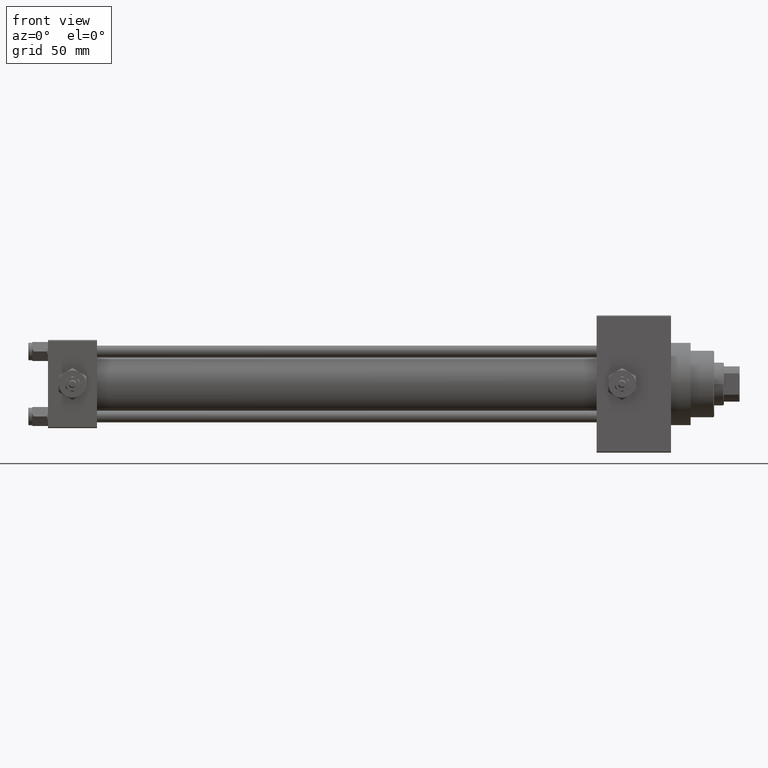
[diagram: clean part render]
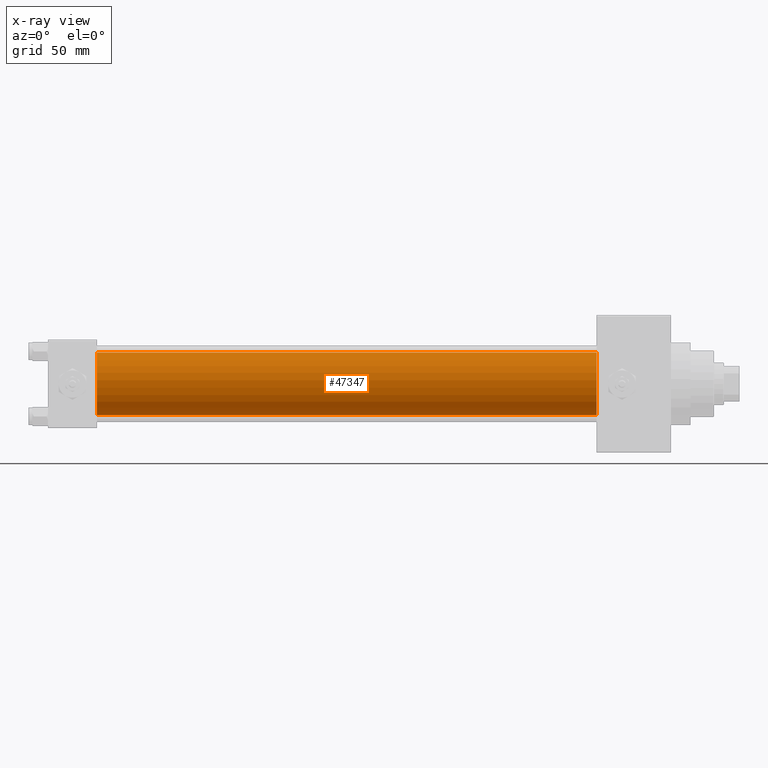
[diagram: x-ray — body ghosted, one internal face saturated and labeled with its STEP entity id]
A machine part, front view, then the same camera in x-ray: the body is ghosted and one INTERNAL B-rep face — a face not visible from any outside direction — is saturated and labeled: STEP entity #47347.
In plain terms, the highlighted cylindrical surface (edge-blend (fillet) strip) has radius 16 mm, axis along (-1, -0, -0).
Its self-contained STEP definition (entity closure, byte-faithful):
#1553 = AXIS2_PLACEMENT_3D ( 'NONE', #16941, #18596, #2046 ) ;
#2046 = DIRECTION ( 'NONE',  ( 0.000000000000000000, 0.000000000000000000, 1.000000000000000000 ) ) ;
#2598 = EDGE_CURVE ( 'NONE', #19886, #47990, #14731, .T. ) ;
#4773 = VECTOR ( 'NONE', #15946, 1000.000000000000000 ) ;
#7803 = VERTEX_POINT ( 'NONE', #40914 ) ;
#13157 = DIRECTION ( 'NONE',  ( -1.000000000000000000, -0.000000000000000000, -0.000000000000000000 ) ) ;
#14731 = CIRCLE ( 'NONE', #33742, 16.00000000000000000 ) ;
#15946 = DIRECTION ( 'NONE',  ( -1.000000000000000000, -0.000000000000000000, -0.000000000000000000 ) ) ;
#16941 = CARTESIAN_POINT ( 'NONE',  ( 280.0000000000000000, -2.602085213965210642E-15, 0.000000000000000000 ) ) ;
#18472 = DIRECTION ( 'NONE',  ( 0.000000000000000000, 0.000000000000000000, -1.000000000000000000 ) ) ;
#18578 = DIRECTION ( 'NONE',  ( 1.000000000000000000, 0.000000000000000000, 0.000000000000000000 ) ) ;
#18596 = DIRECTION ( 'NONE',  ( -1.000000000000000000, -0.000000000000000000, -0.000000000000000000 ) ) ;
#18667 = VECTOR ( 'NONE', #13157, 1000.000000000000000 ) ;
#19667 = LINE ( 'NONE', #20379, #4773 ) ;
#19886 = VERTEX_POINT ( 'NONE', #45418 ) ;
#20379 = CARTESIAN_POINT ( 'NONE',  ( 280.0000000000000000, -2.602085213965210642E-15, 16.00000000000000000 ) ) ;
#23588 = ORIENTED_EDGE ( 'NONE', *, *, #25175, .T. ) ;
#23627 = VERTEX_POINT ( 'NONE', #45207 ) ;
#25175 = EDGE_CURVE ( 'NONE', #47990, #7803, #39204, .T. ) ;
#26029 = EDGE_LOOP ( 'NONE', ( #44669, #23588, #46672, #35734 ) ) ;
#30623 = CARTESIAN_POINT ( 'NONE',  ( 280.0000000000000000, -6.426503353294456087E-16, -16.00000000000000000 ) ) ;
#31543 = AXIS2_PLACEMENT_3D ( 'NONE', #33106, #33594, #18472 ) ;
#33106 = CARTESIAN_POINT ( 'NONE',  ( 25.00000000000000000, -2.602085213965210642E-15, 0.000000000000000000 ) ) ;
#33594 = DIRECTION ( 'NONE',  ( 1.000000000000000000, 0.000000000000000000, 0.000000000000000000 ) ) ;
#33708 = DIRECTION ( 'NONE',  ( 0.000000000000000000, 0.000000000000000000, -1.000000000000000000 ) ) ;
#33742 = AXIS2_PLACEMENT_3D ( 'NONE', #45139, #18578, #33708 ) ;
#34204 = EDGE_CURVE ( 'NONE', #23627, #7803, #46604, .T. ) ;
#35734 = ORIENTED_EDGE ( 'NONE', *, *, #40127, .F. ) ;
#36285 = CYLINDRICAL_SURFACE ( 'NONE', #1553, 16.00000000000000000 ) ;
#39204 = LINE ( 'NONE', #46910, #18667 ) ;
#40127 = EDGE_CURVE ( 'NONE', #19886, #23627, #19667, .T. ) ;
#40263 = FACE_OUTER_BOUND ( 'NONE', #26029, .T. ) ;
#40914 = CARTESIAN_POINT ( 'NONE',  ( 25.00000000000000000, -6.426503353294456087E-16, -16.00000000000000000 ) ) ;
#44669 = ORIENTED_EDGE ( 'NONE', *, *, #2598, .T. ) ;
#45139 = CARTESIAN_POINT ( 'NONE',  ( 280.0000000000000000, -2.602085213965210642E-15, 0.000000000000000000 ) ) ;
#45207 = CARTESIAN_POINT ( 'NONE',  ( 25.00000000000000000, -2.602085213965210642E-15, 16.00000000000000000 ) ) ;
#45418 = CARTESIAN_POINT ( 'NONE',  ( 280.0000000000000000, -2.602085213965210642E-15, 16.00000000000000000 ) ) ;
#46604 = CIRCLE ( 'NONE', #31543, 16.00000000000000000 ) ;
#46672 = ORIENTED_EDGE ( 'NONE', *, *, #34204, .F. ) ;
#46910 = CARTESIAN_POINT ( 'NONE',  ( 280.0000000000000000, -6.426503353294456087E-16, -16.00000000000000000 ) ) ;
#47347 = ADVANCED_FACE ( 'NONE', ( #40263 ), #36285, .F. ) ;
#47990 = VERTEX_POINT ( 'NONE', #30623 ) ;